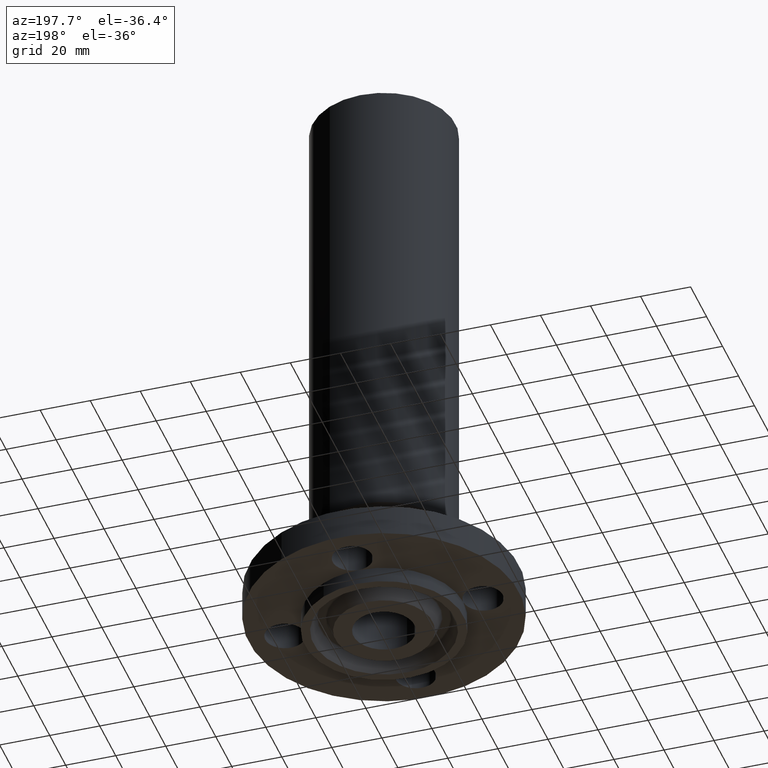
[diagram: clean part render]
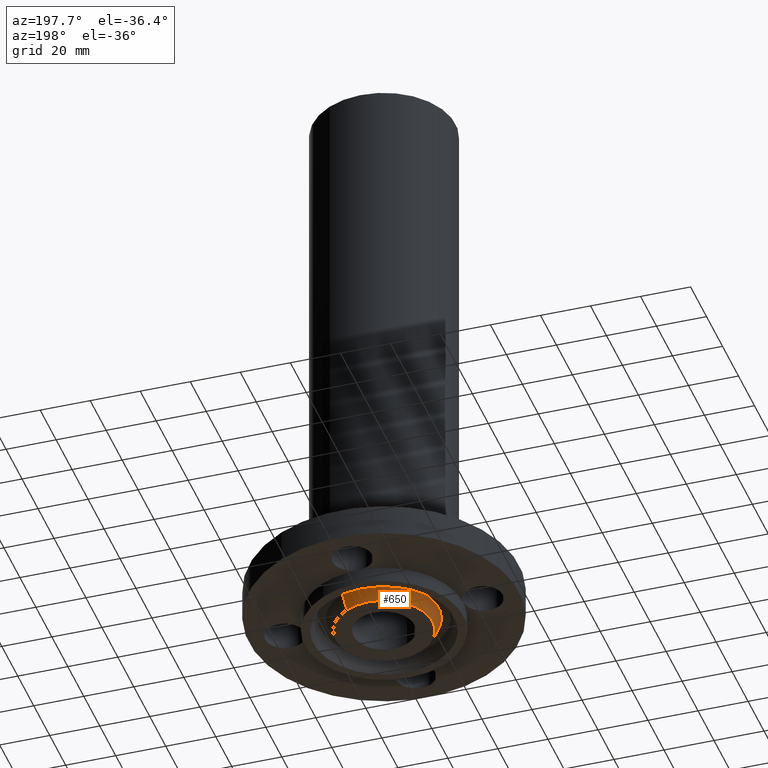
[diagram: same view with one face highlighted and labeled with its STEP entity id]
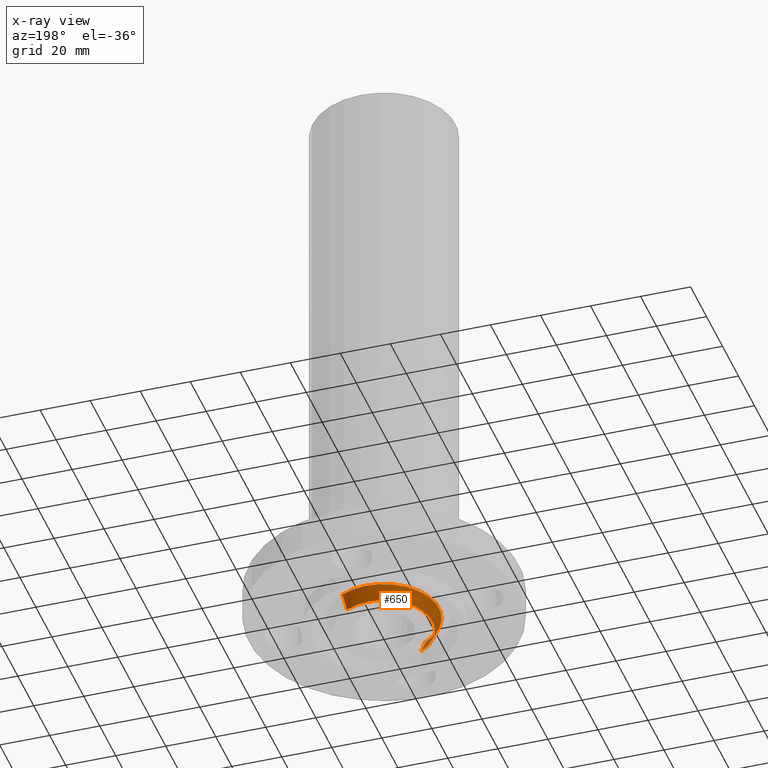
[diagram: x-ray of the same camera — body ghosted, the highlighted face saturated]
A machine part, auxiliary view. The second image highlights one B-rep face of the part: STEP entity #650.
The next image is the same camera in x-ray: the body ghosted, the highlighted face saturated — about 0% of this face is hidden behind the body in this view.
In plain terms, the highlighted conical surface has half-angle 23 deg.
Its self-contained STEP definition (entity closure, byte-faithful):
#599=AXIS2_PLACEMENT_3D('Circle Axis2P3D',#597,#598,$) ;
#623=AXIS2_PLACEMENT_3D('Cone Axis2P3D',#620,#621,#622) ;
#634=AXIS2_PLACEMENT_3D('Circle Axis2P3D',#632,#633,$) ;
#597=CARTESIAN_POINT('Axis2P3D Location',(0.,0.,-0.250000000001)) ;
#601=CARTESIAN_POINT('Vertex',(-0.367000249803,-0.67178945113,-0.250000000001)) ;
#603=CARTESIAN_POINT('Vertex',(0.367000249803,0.67178945113,-0.250000000001)) ;
#620=CARTESIAN_POINT('Axis2P3D Location',(0.,0.,-0.250000000001)) ;
#625=CARTESIAN_POINT('Line Origine',(-0.390516433477,-0.714835536607,-0.134443667509)) ;
#629=CARTESIAN_POINT('Vertex',(-0.414032617151,-0.757881622084,-0.0188873350169)) ;
#632=CARTESIAN_POINT('Axis2P3D Location',(0.,0.,-0.0188873350169)) ;
#636=CARTESIAN_POINT('Vertex',(0.414032617151,0.757881622084,-0.0188873350169)) ;
#639=CARTESIAN_POINT('Line Origine',(0.390516433477,0.714835536607,-0.134443667509)) ;
#598=DIRECTION('Axis2P3D Direction',(0.,0.,-0.0393700787402)) ;
#621=DIRECTION('Axis2P3D Direction',(-0.,-0.,0.0393700787402)) ;
#622=DIRECTION('Axis2P3D XDirection',(-0.0188750212049,-0.0345504945626,0.)) ;
#626=DIRECTION('Vector Direction',(-0.00737505833565,-0.0134999537303,0.0362403485611)) ;
#633=DIRECTION('Axis2P3D Direction',(-0.,0.,0.0393700787402)) ;
#640=DIRECTION('Vector Direction',(0.00737505833565,0.0134999537303,0.0362403485611)) ;
#627=VECTOR('Line Direction',#626,0.0393700787402) ;
#641=VECTOR('Line Direction',#640,0.0393700787402) ;
#645=ORIENTED_EDGE('',*,*,#605,.F.) ;
#646=ORIENTED_EDGE('',*,*,#631,.T.) ;
#647=ORIENTED_EDGE('',*,*,#638,.T.) ;
#648=ORIENTED_EDGE('',*,*,#643,.F.) ;
#650=ADVANCED_FACE('PartBody',(#649),#624,.T.) ;
#600=CIRCLE('generated circle',#599,0.765500000003) ;
#635=CIRCLE('generated circle',#634,0.863601505996) ;
#624=CONICAL_SURFACE('Cone',#623,0.765500000003,0.401425727959) ;
#605=EDGE_CURVE('',#602,#604,#600,.T.) ;
#631=EDGE_CURVE('',#602,#630,#628,.T.) ;
#638=EDGE_CURVE('',#630,#637,#635,.F.) ;
#643=EDGE_CURVE('',#604,#637,#642,.T.) ;
#644=EDGE_LOOP('',(#645,#646,#647,#648)) ;
#649=FACE_OUTER_BOUND('',#644,.T.) ;
#628=LINE('Line',#625,#627) ;
#642=LINE('Line',#639,#641) ;
#602=VERTEX_POINT('',#601) ;
#604=VERTEX_POINT('',#603) ;
#630=VERTEX_POINT('',#629) ;
#637=VERTEX_POINT('',#636) ;